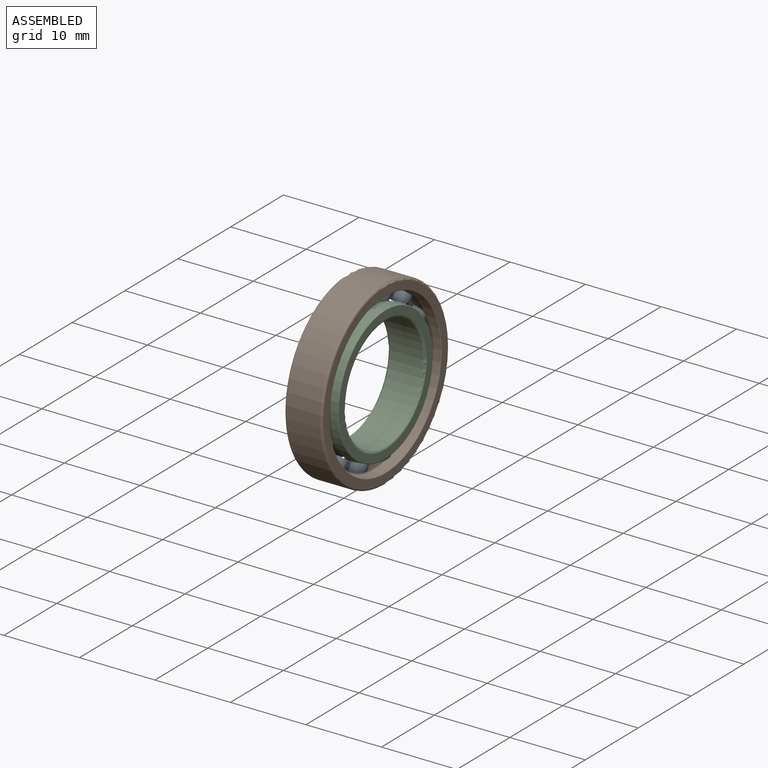
[diagram: assembled view]
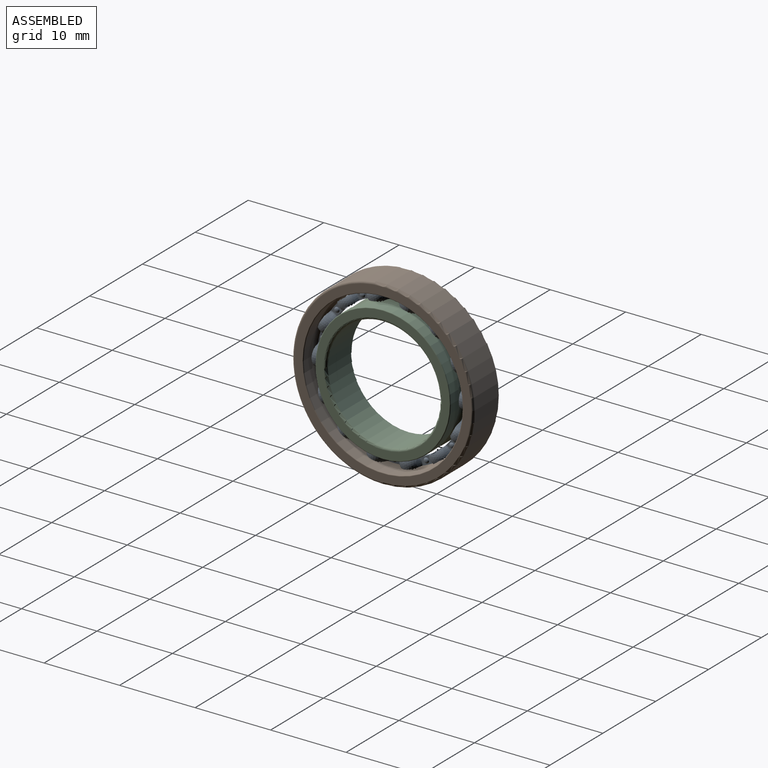
[diagram: assembled view, second angle]
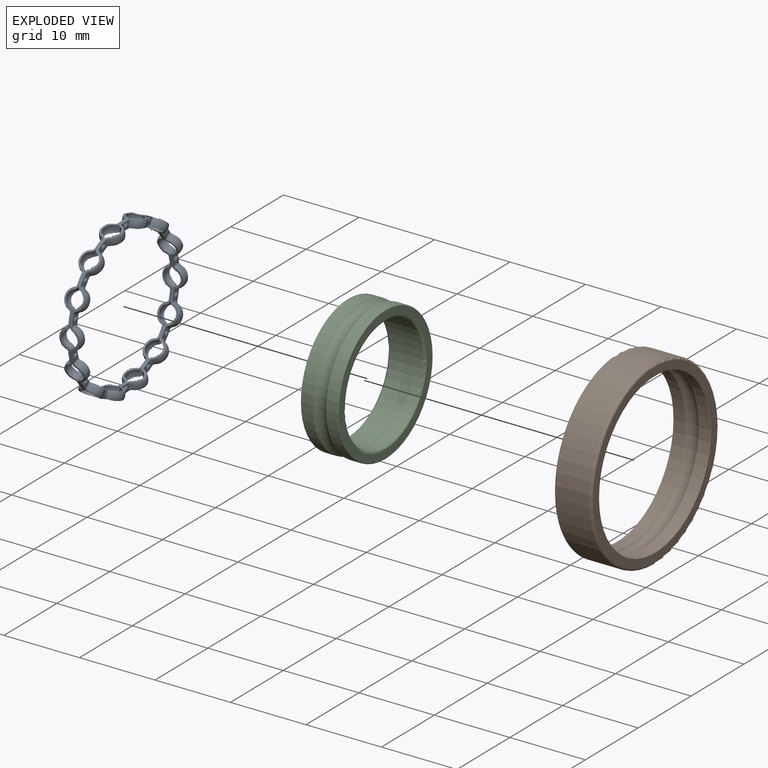
[diagram: exploded view]
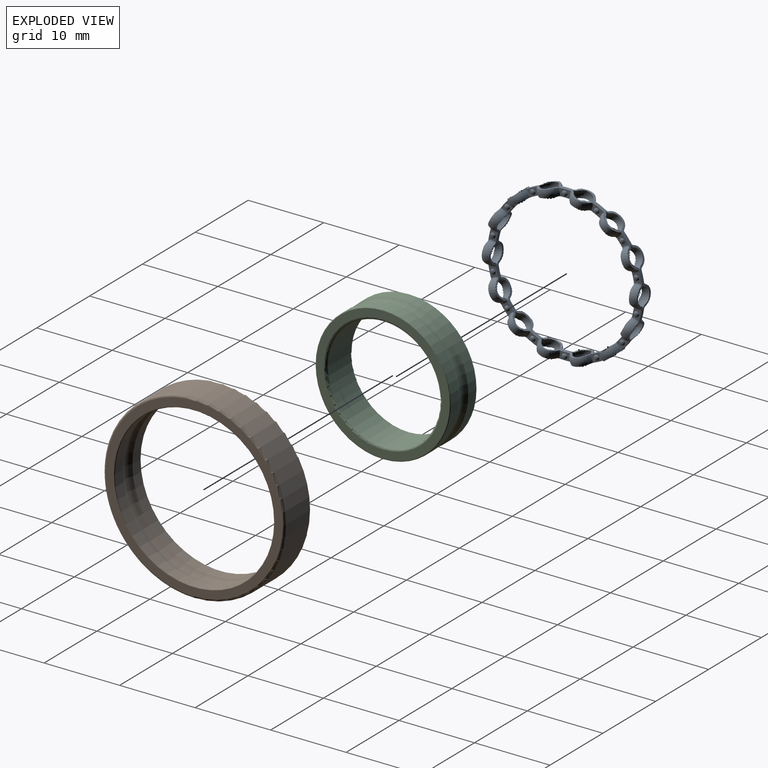
[diagram: exploded view, second angle]
ASSEMBLY  parts=3 mates=2
PART A: 254 faces, bbox 2.9x21.5x21.5 mm
  f0: plane 1.45x1.02mm, normal (1,0,0), area 0.9mm2, adj f1,f2,f3,f4,f5,f6
  f1: cylinder r=10.25mm len=20.5mm, axis (-1,0,0), area 39.3mm2, adj f0,f2,f4,f7,f8,f9,f10,f11
  f2: torus R=1.62mm, axis (1,0,0), area 0.3mm2, adj f0,f1,f3,f90
  f3: cylinder r=9.25mm len=18.5mm, axis (1,0,0), area 37.3mm2, adj f0,f2,f4,f7,f8,f9,f10,f11
  f4: torus R=1.62mm, axis (1,0,0), area 0.3mm2, adj f0,f1,f3,f91
  f5: revolved ~0.69x0.34mm, area 0.3mm2, adj f0,f6
  f6: revolved ~0.69x0.34mm, area 0.3mm2, adj f0,f5
  f7: torus R=1.62mm, axis (-1,0,0), area 0.6mm2, adj f1,f3,f117,f121
  f8: torus R=1.62mm, axis (-1,0,0), area 0.3mm2, adj f1,f3,f9,f63
  f9: sphere r=1.44mm, area 4.3mm2, adj f1,f3,f8,f10
  f10: torus R=1.62mm, axis (-1,0,0), area 0.3mm2, adj f1,f3,f9,f11
  f11: plane 1.6x1.46mm, normal (-1,0,0), area 0.9mm2, adj f1,f3,f10,f12,f200,f201
  f12: torus R=1.62mm, axis (-1,0,0), area 0.3mm2, adj f1,f3,f11,f13
  f13: sphere r=1.44mm, area 4.3mm2, adj f1,f3,f12,f14
  f14: torus R=1.62mm, axis (-1,0,0), area 0.3mm2, adj f1,f3,f13,f15
  f15: plane 1.63x1.59mm, normal (-1,0,0), area 0.9mm2, adj f1,f3,f14,f16,f202,f203
  f16: torus R=1.62mm, axis (-1,0,0), area 0.3mm2, adj f1,f3,f15,f17
  f17: sphere r=1.44mm, area 4.3mm2, adj f1,f3,f16,f18
  f18: torus R=1.62mm, axis (-1,0,0), area 0.3mm2, adj f1,f3,f17,f19
  f19: plane 1.49x1.26mm, normal (-1,0,0), area 0.9mm2, adj f1,f3,f18,f20,f204,f205
  f20: torus R=1.62mm, axis (-1,0,0), area 0.3mm2, adj f1,f3,f19,f21
  f21: sphere r=1.44mm, area 4.3mm2, adj f1,f3,f20,f22
  f22: torus R=1.62mm, axis (-1,0,0), area 0.3mm2, adj f1,f3,f21,f23
  f23: plane 1.49x1.26mm, normal (-1,0,0), area 0.9mm2, adj f1,f3,f22,f24,f206,f207
  f24: torus R=1.62mm, axis (-1,0,0), area 0.3mm2, adj f1,f3,f23,f25
  f25: sphere r=1.44mm, area 4.3mm2, adj f1,f3,f24,f26
  f26: torus R=1.62mm, axis (-1,0,0), area 0.3mm2, adj f1,f3,f25,f27
  f27: plane 1.63x1.59mm, normal (-1,0,0), area 0.9mm2, adj f1,f3,f26,f28,f208,f209
  f28: torus R=1.62mm, axis (-1,0,0), area 0.3mm2, adj f1,f3,f27,f29
  f29: sphere r=1.44mm, area 4.3mm2, adj f1,f3,f28,f30
  f30: torus R=1.62mm, axis (-1,0,0), area 0.3mm2, adj f1,f3,f29,f31
  f31: plane 1.6x1.46mm, normal (-1,0,0), area 0.9mm2, adj f1,f3,f30,f32,f210,f211
  f32: torus R=1.62mm, axis (-1,0,0), area 0.3mm2, adj f1,f3,f31,f33
  f33: sphere r=1.44mm, area 4.3mm2, adj f1,f3,f32,f34
  f34: torus R=1.62mm, axis (-1,0,0), area 0.3mm2, adj f1,f3,f33,f35
  f35: plane 1.45x1.02mm, normal (-1,0,0), area 0.9mm2, adj f1,f3,f34,f36,f212,f213
  f36: torus R=1.62mm, axis (-1,0,0), area 0.3mm2, adj f1,f3,f35,f37
  f37: sphere r=1.44mm, area 4.3mm2, adj f1,f3,f36,f38
  f38: torus R=1.62mm, axis (-1,0,0), area 0.3mm2, adj f1,f3,f37,f39
  f39: plane 1.6x1.46mm, normal (-1,0,0), area 0.9mm2, adj f1,f3,f38,f40,f214,f215
  f40: torus R=1.62mm, axis (-1,0,0), area 0.3mm2, adj f1,f3,f39,f41
  f41: sphere r=1.44mm, area 4.3mm2, adj f1,f3,f40,f42
  f42: torus R=1.62mm, axis (-1,0,0), area 0.3mm2, adj f1,f3,f41,f43
  f43: plane 1.63x1.59mm, normal (-1,0,0), area 0.9mm2, adj f1,f3,f42,f44,f216,f217
  f44: torus R=1.62mm, axis (-1,0,0), area 0.3mm2, adj f1,f3,f43,f45
  f45: sphere r=1.44mm, area 4.3mm2, adj f1,f3,f44,f46
  f46: torus R=1.62mm, axis (-1,0,0), area 0.3mm2, adj f1,f3,f45,f47
  f47: plane 1.49x1.26mm, normal (-1,0,0), area 0.9mm2, adj f1,f3,f46,f48,f218,f219
  f48: torus R=1.62mm, axis (-1,0,0), area 0.3mm2, adj f1,f3,f47,f49
  f49: sphere r=1.44mm, area 4.3mm2, adj f1,f3,f48,f50
  f50: torus R=1.62mm, axis (-1,0,0), area 0.3mm2, adj f1,f3,f49,f51
  f51: plane 1.49x1.26mm, normal (-1,0,0), area 0.9mm2, adj f1,f3,f50,f52,f220,f221
  f52: torus R=1.62mm, axis (-1,0,0), area 0.3mm2, adj f1,f3,f51,f53
  f53: sphere r=1.44mm, area 4.3mm2, adj f1,f3,f52,f54
  f54: torus R=1.62mm, axis (-1,0,0), area 0.3mm2, adj f1,f3,f53,f55
  f55: plane 1.63x1.59mm, normal (-1,0,0), area 0.9mm2, adj f1,f3,f54,f56,f222,f223
  f56: torus R=1.62mm, axis (-1,0,0), area 0.3mm2, adj f1,f3,f55,f57
  f57: sphere r=1.44mm, area 4.3mm2, adj f1,f3,f56,f58
  f58: torus R=1.62mm, axis (-1,0,0), area 0.3mm2, adj f1,f3,f57,f59
  f59: plane 1.6x1.46mm, normal (-1,0,0), area 0.9mm2, adj f1,f3,f58,f60,f224,f225
  f60: torus R=1.62mm, axis (-1,0,0), area 0.3mm2, adj f1,f3,f59,f61
  f61: sphere r=1.44mm, area 4.3mm2, adj f1,f3,f60,f62
  f62: torus R=1.62mm, axis (-1,0,0), area 0.3mm2, adj f1,f3,f61,f63
  f63: plane 1.45x1.02mm, normal (-1,0,0), area 0.9mm2, adj f1,f3,f8,f62,f226,f227
  f64: plane 1.45x1.02mm, normal (1,0,0), area 0.9mm2, adj f1,f3,f65,f116,f228,f229
  f65: torus R=1.62mm, axis (1,0,0), area 0.3mm2, adj f1,f3,f64,f66
  f66: sphere r=1.44mm, area 4.3mm2, adj f1,f3,f65,f67
  f67: torus R=1.62mm, axis (1,0,0), area 0.3mm2, adj f1,f3,f66,f68
  f68: plane 1.6x1.46mm, normal (1,0,0), area 0.9mm2, adj f1,f3,f67,f69,f230,f231
  f69: torus R=1.62mm, axis (1,0,0), area 0.3mm2, adj f1,f3,f68,f70
  f70: sphere r=1.44mm, area 4.3mm2, adj f1,f3,f69,f71
  f71: torus R=1.62mm, axis (1,0,0), area 0.3mm2, adj f1,f3,f70,f72
  f72: plane 1.63x1.59mm, normal (1,0,0), area 0.9mm2, adj f1,f3,f71,f73,f232,f233
  f73: torus R=1.62mm, axis (1,0,0), area 0.3mm2, adj f1,f3,f72,f74
  f74: sphere r=1.44mm, area 4.3mm2, adj f1,f3,f73,f75
  f75: torus R=1.62mm, axis (1,0,0), area 0.3mm2, adj f1,f3,f74,f76
  f76: plane 1.49x1.26mm, normal (1,0,0), area 0.9mm2, adj f1,f3,f75,f77,f234,f235
  f77: torus R=1.62mm, axis (1,0,0), area 0.3mm2, adj f1,f3,f76,f78
  f78: sphere r=1.44mm, area 4.3mm2, adj f1,f3,f77,f79
  f79: torus R=1.62mm, axis (1,0,0), area 0.3mm2, adj f1,f3,f78,f80
  f80: plane 1.49x1.26mm, normal (1,0,0), area 0.9mm2, adj f1,f3,f79,f81,f236,f237
  f81: torus R=1.62mm, axis (1,0,0), area 0.3mm2, adj f1,f3,f80,f82
  f82: sphere r=1.44mm, area 4.3mm2, adj f1,f3,f81,f83
  f83: torus R=1.62mm, axis (1,0,0), area 0.3mm2, adj f1,f3,f82,f84
  f84: plane 1.63x1.59mm, normal (1,0,0), area 0.9mm2, adj f1,f3,f83,f85,f238,f239
  f85: torus R=1.62mm, axis (1,0,0), area 0.3mm2, adj f1,f3,f84,f86
  f86: sphere r=1.44mm, area 4.3mm2, adj f1,f3,f85,f87
  f87: torus R=1.62mm, axis (1,0,0), area 0.3mm2, adj f1,f3,f86,f88
  f88: plane 1.6x1.46mm, normal (1,0,0), area 0.9mm2, adj f1,f3,f87,f89,f240,f241
  f89: torus R=1.62mm, axis (1,0,0), area 0.3mm2, adj f1,f3,f88,f90
  f90: sphere r=1.44mm, area 4.3mm2, adj f1,f2,f3,f89
  f91: sphere r=1.44mm, area 4.3mm2, adj f1,f3,f4,f92
  f92: torus R=1.62mm, axis (1,0,0), area 0.3mm2, adj f1,f3,f91,f93
  f93: plane 1.6x1.46mm, normal (1,0,0), area 0.9mm2, adj f1,f3,f92,f94,f242,f243
  f94: torus R=1.62mm, axis (1,0,0), area 0.3mm2, adj f1,f3,f93,f95
  f95: sphere r=1.44mm, area 4.3mm2, adj f1,f3,f94,f96
  f96: torus R=1.62mm, axis (1,0,0), area 0.3mm2, adj f1,f3,f95,f97
  f97: plane 1.63x1.59mm, normal (1,0,0), area 0.9mm2, adj f1,f3,f96,f98,f244,f245
  f98: torus R=1.62mm, axis (1,0,0), area 0.3mm2, adj f1,f3,f97,f99
  f99: sphere r=1.44mm, area 4.3mm2, adj f1,f3,f98,f100
  f100: torus R=1.62mm, axis (1,0,0), area 0.3mm2, adj f1,f3,f99,f101
  f101: plane 1.49x1.26mm, normal (1,0,0), area 0.9mm2, adj f1,f3,f100,f102,f246,f247
  f102: torus R=1.62mm, axis (1,0,0), area 0.3mm2, adj f1,f3,f101,f103
  f103: sphere r=1.44mm, area 4.3mm2, adj f1,f3,f102,f104
  f104: torus R=1.62mm, axis (1,0,0), area 0.3mm2, adj f1,f3,f103,f105
  f105: plane 1.49x1.26mm, normal (1,0,0), area 0.9mm2, adj f1,f3,f104,f106,f248,f249
  f106: torus R=1.62mm, axis (1,0,0), area 0.3mm2, adj f1,f3,f105,f107
  f107: sphere r=1.44mm, area 4.3mm2, adj f1,f3,f106,f108
  f108: torus R=1.62mm, axis (1,0,0), area 0.3mm2, adj f1,f3,f107,f109
  f109: plane 1.63x1.59mm, normal (1,0,0), area 0.9mm2, adj f1,f3,f108,f110,f250,f251
  f110: torus R=1.62mm, axis (1,0,0), area 0.3mm2, adj f1,f3,f109,f111
  f111: sphere r=1.44mm, area 4.3mm2, adj f1,f3,f110,f112
  f112: torus R=1.62mm, axis (1,0,0), area 0.3mm2, adj f1,f3,f111,f113
  f113: plane 1.6x1.46mm, normal (1,0,0), area 0.9mm2, adj f1,f3,f112,f114,f252,f253
  f114: torus R=1.62mm, axis (1,0,0), area 0.3mm2, adj f1,f3,f113,f115
  f115: sphere r=1.44mm, area 4.3mm2, adj f1,f3,f114,f116
  f116: torus R=1.62mm, axis (1,0,0), area 0.3mm2, adj f1,f3,f64,f115
  f117: torus R=1.62mm, axis (1,0,0), area 0.6mm2, adj f1,f3,f7,f118
  f118: sphere r=1.19mm, area 3.2mm2, adj f1,f3,f117,f119
  f119: torus R=1.62mm, axis (1,0,0), area 0.6mm2, adj f1,f3,f118,f120
  f120: torus R=1.62mm, axis (-1,0,0), area 0.6mm2, adj f1,f3,f119,f121
  f121: sphere r=1.19mm, area 3.2mm2, adj f1,f3,f7,f120
  f122: torus R=1.62mm, axis (-1,0,0), area 0.6mm2, adj f1,f3,f123,f127
  f123: torus R=1.62mm, axis (1,0,0), area 0.6mm2, adj f1,f3,f122,f124
  f124: sphere r=1.19mm, area 3.2mm2, adj f1,f3,f123,f125
  f125: torus R=1.62mm, axis (1,0,0), area 0.6mm2, adj f1,f3,f124,f126
  f126: torus R=1.62mm, axis (-1,0,0), area 0.6mm2, adj f1,f3,f125,f127
  f127: sphere r=1.19mm, area 3.2mm2, adj f1,f3,f122,f126
  f128: torus R=1.62mm, axis (-1,0,0), area 0.6mm2, adj f1,f3,f129,f133
  f129: torus R=1.62mm, axis (1,0,0), area 0.6mm2, adj f1,f3,f128,f130
  f130: sphere r=1.19mm, area 3.2mm2, adj f1,f3,f129,f131
  f131: torus R=1.62mm, axis (1,0,0), area 0.6mm2, adj f1,f3,f130,f132
  f132: torus R=1.62mm, axis (-1,0,0), area 0.6mm2, adj f1,f3,f131,f133
  f133: sphere r=1.19mm, area 3.2mm2, adj f1,f3,f128,f132
  f134: torus R=1.62mm, axis (-1,0,0), area 0.6mm2, adj f1,f3,f135,f139
  f135: torus R=1.62mm, axis (1,0,0), area 0.6mm2, adj f1,f3,f134,f136
  f136: sphere r=1.19mm, area 3.2mm2, adj f1,f3,f135,f137
  f137: torus R=1.62mm, axis (1,0,0), area 0.6mm2, adj f1,f3,f136,f138
  f138: torus R=1.62mm, axis (-1,0,0), area 0.6mm2, adj f1,f3,f137,f139
  f139: sphere r=1.19mm, area 3.2mm2, adj f1,f3,f134,f138
  f140: torus R=1.62mm, axis (-1,0,0), area 0.6mm2, adj f1,f3,f141,f145
  f141: torus R=1.62mm, axis (1,0,0), area 0.6mm2, adj f1,f3,f140,f142
  f142: sphere r=1.19mm, area 3.2mm2, adj f1,f3,f141,f143
  f143: torus R=1.62mm, axis (1,0,0), area 0.6mm2, adj f1,f3,f142,f144
  f144: torus R=1.62mm, axis (-1,0,0), area 0.6mm2, adj f1,f3,f143,f145
  f145: sphere r=1.19mm, area 3.2mm2, adj f1,f3,f140,f144
  f146: torus R=1.62mm, axis (-1,0,0), area 0.6mm2, adj f1,f3,f147,f151
  f147: torus R=1.62mm, axis (1,0,0), area 0.6mm2, adj f1,f3,f146,f148
  f148: sphere r=1.19mm, area 3.2mm2, adj f1,f3,f147,f149
  f149: torus R=1.62mm, axis (1,0,0), area 0.6mm2, adj f1,f3,f148,f150
  f150: torus R=1.62mm, axis (-1,0,0), area 0.6mm2, adj f1,f3,f149,f151
  f151: sphere r=1.19mm, area 3.2mm2, adj f1,f3,f146,f150
  f152: torus R=1.62mm, axis (-1,0,0), area 0.6mm2, adj f1,f3,f153,f157
  f153: torus R=1.62mm, axis (1,0,0), area 0.6mm2, adj f1,f3,f152,f154
  f154: sphere r=1.19mm, area 3.2mm2, adj f1,f3,f153,f155
  f155: torus R=1.62mm, axis (1,0,0), area 0.6mm2, adj f1,f3,f154,f156
  f156: torus R=1.62mm, axis (-1,0,0), area 0.6mm2, adj f1,f3,f155,f157
  f157: sphere r=1.19mm, area 3.2mm2, adj f1,f3,f152,f156
  f158: torus R=1.62mm, axis (-1,0,0), area 0.6mm2, adj f1,f3,f159,f163
  f159: torus R=1.62mm, axis (1,0,0), area 0.6mm2, adj f1,f3,f158,f160
  f160: sphere r=1.19mm, area 3.2mm2, adj f1,f3,f159,f161
  f161: torus R=1.62mm, axis (1,0,0), area 0.6mm2, adj f1,f3,f160,f162
  f162: torus R=1.62mm, axis (-1,0,0), area 0.6mm2, adj f1,f3,f161,f163
  f163: sphere r=1.19mm, area 3.2mm2, adj f1,f3,f158,f162
  f164: torus R=1.62mm, axis (-1,0,0), area 0.6mm2, adj f1,f3,f165,f169
  f165: torus R=1.62mm, axis (1,0,0), area 0.6mm2, adj f1,f3,f164,f166
  f166: sphere r=1.19mm, area 3.2mm2, adj f1,f3,f165,f167
  f167: torus R=1.62mm, axis (1,0,0), area 0.6mm2, adj f1,f3,f166,f168
  f168: torus R=1.62mm, axis (-1,0,0), area 0.6mm2, adj f1,f3,f167,f169
  f169: sphere r=1.19mm, area 3.2mm2, adj f1,f3,f164,f168
  f170: torus R=1.62mm, axis (-1,0,0), area 0.6mm2, adj f1,f3,f171,f175
  f171: torus R=1.62mm, axis (1,0,0), area 0.6mm2, adj f1,f3,f170,f172
  f172: sphere r=1.19mm, area 3.2mm2, adj f1,f3,f171,f173
  f173: torus R=1.62mm, axis (1,0,0), area 0.6mm2, adj f1,f3,f172,f174
  f174: torus R=1.62mm, axis (-1,0,0), area 0.6mm2, adj f1,f3,f173,f175
  f175: sphere r=1.19mm, area 3.2mm2, adj f1,f3,f170,f174
  f176: torus R=1.62mm, axis (-1,0,0), area 0.6mm2, adj f1,f3,f177,f181
  f177: torus R=1.62mm, axis (1,0,0), area 0.6mm2, adj f1,f3,f176,f178
  f178: sphere r=1.19mm, area 3.2mm2, adj f1,f3,f177,f179
  f179: torus R=1.62mm, axis (1,0,0), area 0.6mm2, adj f1,f3,f178,f180
  f180: torus R=1.62mm, axis (-1,0,0), area 0.6mm2, adj f1,f3,f179,f181
  f181: sphere r=1.19mm, area 3.2mm2, adj f1,f3,f176,f180
  f182: torus R=1.62mm, axis (-1,0,0), area 0.6mm2, adj f1,f3,f183,f187
  f183: torus R=1.62mm, axis (1,0,0), area 0.6mm2, adj f1,f3,f182,f184
  f184: sphere r=1.19mm, area 3.2mm2, adj f1,f3,f183,f185
  f185: torus R=1.62mm, axis (1,0,0), area 0.6mm2, adj f1,f3,f184,f186
  f186: torus R=1.62mm, axis (-1,0,0), area 0.6mm2, adj f1,f3,f185,f187
  f187: sphere r=1.19mm, area 3.2mm2, adj f1,f3,f182,f186
  f188: torus R=1.62mm, axis (-1,0,0), area 0.6mm2, adj f1,f3,f189,f193
  f189: torus R=1.62mm, axis (1,0,0), area 0.6mm2, adj f1,f3,f188,f190
  f190: sphere r=1.19mm, area 3.2mm2, adj f1,f3,f189,f191
  f191: torus R=1.62mm, axis (1,0,0), area 0.6mm2, adj f1,f3,f190,f192
  f192: torus R=1.62mm, axis (-1,0,0), area 0.6mm2, adj f1,f3,f191,f193
  f193: sphere r=1.19mm, area 3.2mm2, adj f1,f3,f188,f192
  f194: torus R=1.62mm, axis (1,0,0), area 0.6mm2, adj f1,f3,f195,f199
  f195: torus R=1.62mm, axis (-1,0,0), area 0.6mm2, adj f1,f3,f194,f196
  f196: sphere r=1.19mm, area 3.2mm2, adj f1,f3,f195,f197
  f197: torus R=1.62mm, axis (-1,0,0), area 0.6mm2, adj f1,f3,f196,f198
  f198: torus R=1.62mm, axis (1,0,0), area 0.6mm2, adj f1,f3,f197,f199
  f199: sphere r=1.19mm, area 3.2mm2, adj f1,f3,f194,f198
  f200: revolved ~0.65x0.49mm, area 0.3mm2, adj f11,f201
  f201: revolved ~0.65x0.49mm, area 0.3mm2, adj f11,f200
  f202: revolved ~0.61x0.56mm, area 0.3mm2, adj f15,f203
  f203: revolved ~0.61x0.56mm, area 0.3mm2, adj f15,f202
  f204: revolved ~0.68x0.42mm, area 0.3mm2, adj f19,f205
  f205: revolved ~0.68x0.42mm, area 0.3mm2, adj f19,f204
  f206: revolved ~0.68x0.42mm, area 0.3mm2, adj f23,f207
  f207: revolved ~0.68x0.42mm, area 0.3mm2, adj f23,f206
  f208: revolved ~0.61x0.56mm, area 0.3mm2, adj f27,f209
  f209: revolved ~0.61x0.56mm, area 0.3mm2, adj f27,f208
  f210: revolved ~0.65x0.49mm, area 0.3mm2, adj f31,f211
  f211: revolved ~0.65x0.49mm, area 0.3mm2, adj f31,f210
  f212: revolved ~0.69x0.5mm, area 0.4mm2, adj f35,f213
  f213: revolved ~0.69x0.5mm, area 0.4mm2, adj f35,f212
  f214: revolved ~0.65x0.49mm, area 0.3mm2, adj f39,f215
  f215: revolved ~0.65x0.49mm, area 0.3mm2, adj f39,f214
  f216: revolved ~0.61x0.56mm, area 0.3mm2, adj f43,f217
  f217: revolved ~0.61x0.56mm, area 0.3mm2, adj f43,f216
  f218: revolved ~0.68x0.42mm, area 0.3mm2, adj f47,f219
  f219: revolved ~0.68x0.42mm, area 0.3mm2, adj f47,f218
  f220: revolved ~0.68x0.42mm, area 0.3mm2, adj f51,f221
  f221: revolved ~0.68x0.42mm, area 0.3mm2, adj f51,f220
  f222: revolved ~0.61x0.56mm, area 0.3mm2, adj f55,f223
  f223: revolved ~0.61x0.56mm, area 0.3mm2, adj f55,f222
  f224: revolved ~0.65x0.49mm, area 0.3mm2, adj f59,f225
  f225: revolved ~0.65x0.49mm, area 0.3mm2, adj f59,f224
  f226: revolved ~0.69x0.5mm, area 0.4mm2, adj f63,f227
  f227: revolved ~0.69x0.5mm, area 0.4mm2, adj f63,f226
  f228: revolved ~0.69x0.34mm, area 0.3mm2, adj f64,f229
  f229: revolved ~0.69x0.34mm, area 0.3mm2, adj f64,f228
  f230: revolved ~0.65x0.49mm, area 0.3mm2, adj f68,f231
  f231: revolved ~0.65x0.49mm, area 0.3mm2, adj f68,f230
  f232: revolved ~0.61x0.56mm, area 0.3mm2, adj f72,f233
  f233: revolved ~0.61x0.56mm, area 0.3mm2, adj f72,f232
  f234: revolved ~0.68x0.42mm, area 0.3mm2, adj f76,f235
  f235: revolved ~0.68x0.42mm, area 0.3mm2, adj f76,f234
  f236: revolved ~0.68x0.42mm, area 0.3mm2, adj f80,f237
  f237: revolved ~0.68x0.42mm, area 0.3mm2, adj f80,f236
  f238: revolved ~0.61x0.56mm, area 0.3mm2, adj f84,f239
  f239: revolved ~0.61x0.56mm, area 0.3mm2, adj f84,f238
  f240: revolved ~0.65x0.49mm, area 0.3mm2, adj f88,f241
  f241: revolved ~0.65x0.49mm, area 0.3mm2, adj f88,f240
  f242: revolved ~0.65x0.49mm, area 0.3mm2, adj f93,f243
  f243: revolved ~0.65x0.49mm, area 0.3mm2, adj f93,f242
  f244: revolved ~0.61x0.56mm, area 0.3mm2, adj f97,f245
  f245: revolved ~0.61x0.56mm, area 0.3mm2, adj f97,f244
  f246: revolved ~0.68x0.42mm, area 0.3mm2, adj f101,f247
  f247: revolved ~0.68x0.42mm, area 0.3mm2, adj f101,f246
  f248: revolved ~0.68x0.42mm, area 0.3mm2, adj f105,f249
  f249: revolved ~0.68x0.42mm, area 0.3mm2, adj f105,f248
  f250: revolved ~0.61x0.56mm, area 0.3mm2, adj f109,f251
  f251: revolved ~0.61x0.56mm, area 0.3mm2, adj f109,f250
  f252: revolved ~0.65x0.49mm, area 0.3mm2, adj f113,f253
  f253: revolved ~0.65x0.49mm, area 0.3mm2, adj f113,f252
PART B: 10 faces, bbox 5x26x26 mm
  f0: torus R=9.75mm, axis (1,0,0), area 134.8mm2, adj f4,f5
  f1: cylinder r=12mm len=24mm, axis (1,0,0), area 331.8mm2, adj f2,f7
  f2: torus R=11.7mm, axis (1,0,0), area 35.2mm2, adj f1,f9
  f3: torus R=10.65mm, axis (1,0,0), area 10.4mm2, adj f4,f9
  f4: cylinder r=10.55mm len=21.1mm, axis (1,0,0), area 100.6mm2, adj f0,f3
  f5: cylinder r=10.55mm len=21.1mm, axis (1,0,0), area 100.6mm2, adj f0,f6
  f6: torus R=10.65mm, axis (1,0,0), area 10.4mm2, adj f5,f8
  f7: torus R=11.7mm, axis (1,0,0), area 35.2mm2, adj f1,f8
  f8: plane 23.4x23.4mm, normal (-1,0,0), area 73.7mm2, adj f6,f7
  f9: plane 23.4x23.4mm, normal (1,0,0), area 73.7mm2, adj f2,f3
PART C: 10 faces, bbox 5x21.1x21.1 mm
  f0: torus R=9.75mm, axis (1,0,0), area 108.4mm2, adj f2,f3
  f1: torus R=8.85mm, axis (1,0,0), area 8.8mm2, adj f2,f9
  f2: cylinder r=8.95mm len=17.9mm, axis (1,0,0), area 85.4mm2, adj f0,f1
  f3: cylinder r=8.95mm len=17.9mm, axis (1,0,0), area 85.4mm2, adj f0,f4
  f4: torus R=8.85mm, axis (1,0,0), area 8.8mm2, adj f3,f8
  f5: torus R=7.8mm, axis (1,0,0), area 22.5mm2, adj f6,f8
  f6: cylinder r=7.5mm len=15mm, axis (1,0,0), area 207.3mm2, adj f5,f7
  f7: torus R=7.8mm, axis (1,0,0), area 22.5mm2, adj f6,f9
  f8: plane 17.7x17.7mm, normal (1,0,0), area 54.9mm2, adj f4,f5
  f9: plane 17.7x17.7mm, normal (-1,0,0), area 54.9mm2, adj f1,f7
PLACE A t=(-12.62,-25.48,6.34)mm
PLACE B t=(-12.62,-25.48,6.34)mm
PLACE C t=(-12.62,-25.48,6.34)mm
MATE fastened A.f1 <-> B.f0  axis (-1,0,0) through (-10.12,-25.48,6.34)mm
MATE fastened C.f0 <-> A.f1  axis (1,0,0) through (-10.12,-25.48,6.34)mm
